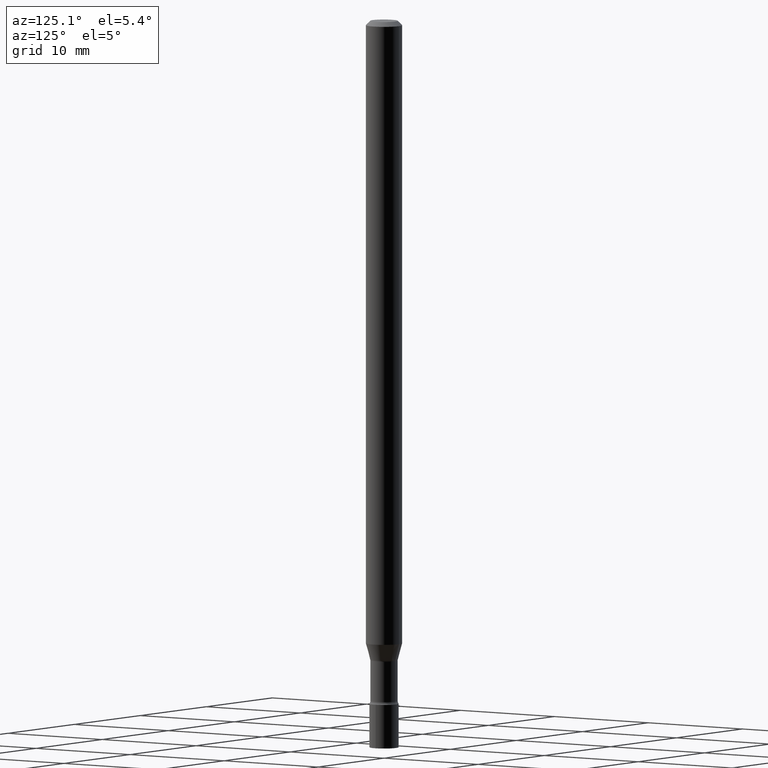
[diagram: clean part render]
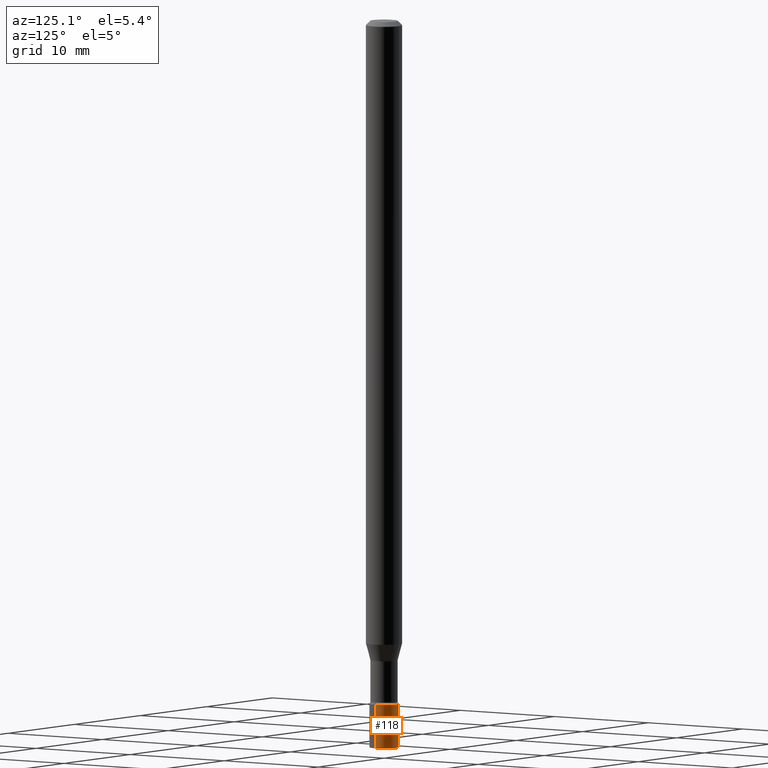
[diagram: same view with one face highlighted and labeled with its STEP entity id]
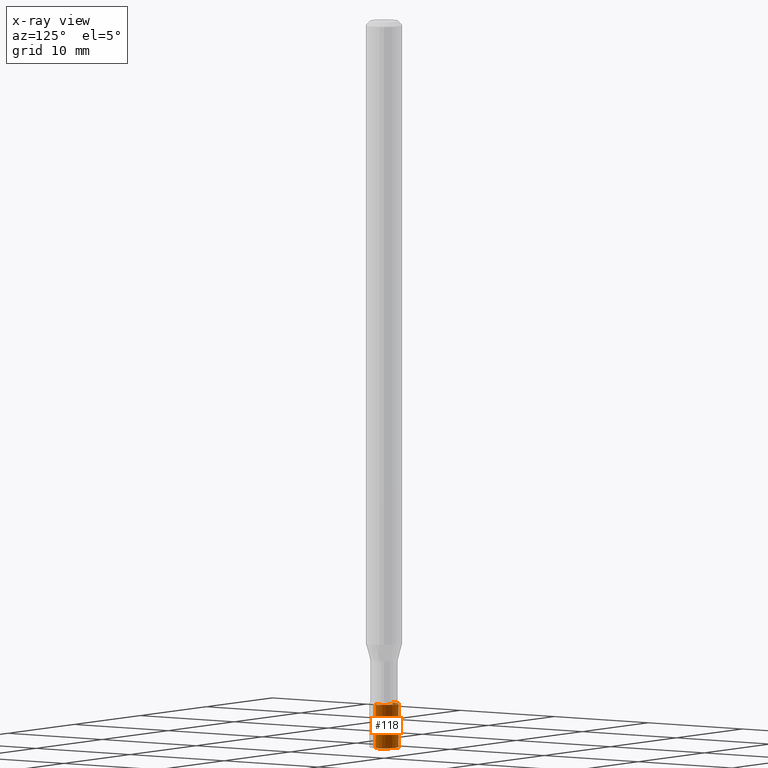
[diagram: x-ray of the same camera — body ghosted, the highlighted face saturated]
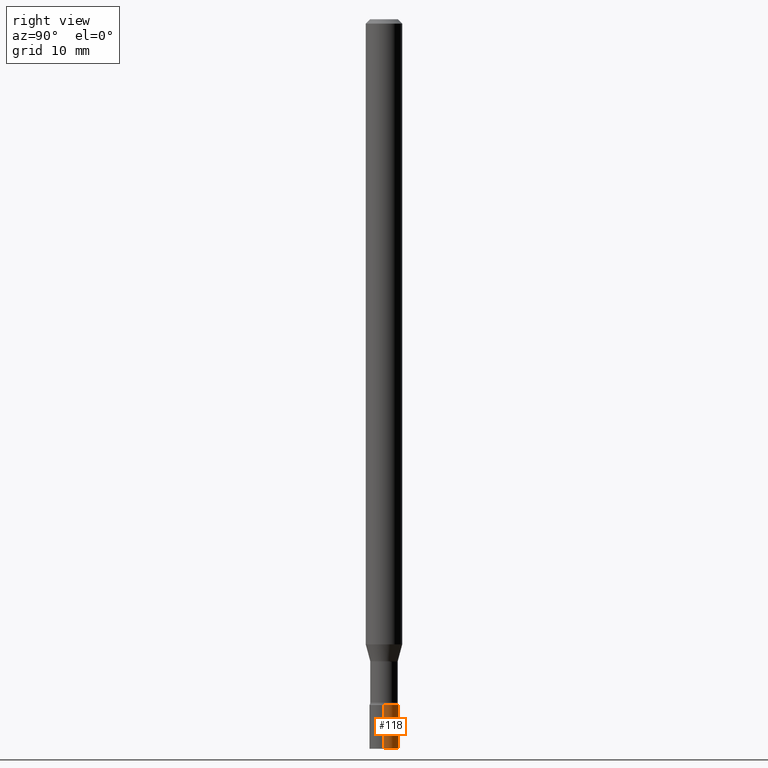
[diagram: same view with one face highlighted and labeled with its STEP entity id]
A machine part, auxiliary view. The second image highlights one B-rep face of the part: STEP entity #118.
The next image is the same camera in x-ray: the body ghosted, the highlighted face saturated — about 0% of this face is hidden behind the body in this view.
A second angle (right view) of the same face is appended — the face is thin or edge-on in the first view.
In plain terms, the highlighted cylindrical surface (edge-blend (fillet) strip) has radius 1.27 mm, axis along (-0, 0, 1).
Its self-contained STEP definition (entity closure, byte-faithful):
#6 = EDGE_CURVE ( 'NONE', #271, #214, #404, .T. ) ;
#15 = CARTESIAN_POINT ( 'NONE',  ( -0.05000000000000000278, -8.111570878814577955E-15, -2.500000000000000000 ) ) ;
#20 = DIRECTION ( 'NONE',  ( 1.000000000000000000, -6.982962677686267499E-15, 4.876176775795936353E-29 ) ) ;
#58 = FACE_OUTER_BOUND ( 'NONE', #91, .T. ) ;
#72 = DIRECTION ( 'NONE',  ( -2.445468806185136597E-29, 3.491481338843145583E-15, 1.000000000000000000 ) ) ;
#75 = LINE ( 'NONE', #152, #109 ) ;
#79 = EDGE_CURVE ( 'NONE', #128, #355, #75, .T. ) ;
#91 = EDGE_LOOP ( 'NONE', ( #108, #153, #324, #144 ) ) ;
#103 = CARTESIAN_POINT ( 'NONE',  ( 0.000000000000000000, 0.000000000000000000, 0.000000000000000000 ) ) ;
#108 = ORIENTED_EDGE ( 'NONE', *, *, #232, .T. ) ;
#109 = VECTOR ( 'NONE', #192, 39.37007874015748143 ) ;
#118 = ADVANCED_FACE ( 'NONE', ( #58 ), #127, .T. ) ;
#127 = CYLINDRICAL_SURFACE ( 'NONE', #252, 0.05000000000000000278 ) ;
#128 = VERTEX_POINT ( 'NONE', #375 ) ;
#144 = ORIENTED_EDGE ( 'NONE', *, *, #79, .F. ) ;
#145 = CARTESIAN_POINT ( 'NONE',  ( 5.746851694535070554E-29, -8.204981146281391784E-15, -2.350000000000000089 ) ) ;
#152 = CARTESIAN_POINT ( 'NONE',  ( 0.05000000000000000278, -3.491481338843133848E-16, 2.438088387897968247E-30 ) ) ;
#153 = ORIENTED_EDGE ( 'NONE', *, *, #6, .T. ) ;
#192 = DIRECTION ( 'NONE',  ( -2.445468806185136877E-29, 3.491481338843145188E-15, 1.000000000000000000 ) ) ;
#207 = CARTESIAN_POINT ( 'NONE',  ( 6.113672015462842613E-29, -8.728703347107864943E-15, -2.500000000000000000 ) ) ;
#211 = AXIS2_PLACEMENT_3D ( 'NONE', #207, #409, #485 ) ;
#214 = VERTEX_POINT ( 'NONE', #438 ) ;
#217 = DIRECTION ( 'NONE',  ( -2.445468806185136597E-29, 3.491481338843145583E-15, 1.000000000000000000 ) ) ;
#219 = VECTOR ( 'NONE', #244, 39.37007874015748143 ) ;
#228 = CIRCLE ( 'NONE', #489, 0.05000000000000000278 ) ;
#232 = EDGE_CURVE ( 'NONE', #128, #271, #439, .T. ) ;
#244 = DIRECTION ( 'NONE',  ( -2.445468806185136877E-29, 3.491481338843145188E-15, 1.000000000000000000 ) ) ;
#250 = CARTESIAN_POINT ( 'NONE',  ( 0.05000000000000000278, -8.554129280165706697E-15, -2.350000000000000089 ) ) ;
#252 = AXIS2_PLACEMENT_3D ( 'NONE', #103, #217, #20 ) ;
#271 = VERTEX_POINT ( 'NONE', #15 ) ;
#324 = ORIENTED_EDGE ( 'NONE', *, *, #472, .F. ) ;
#355 = VERTEX_POINT ( 'NONE', #250 ) ;
#375 = CARTESIAN_POINT ( 'NONE',  ( 0.05000000000000000278, -9.077851480992178278E-15, -2.500000000000000000 ) ) ;
#382 = DIRECTION ( 'NONE',  ( 1.000000000000000000, -6.982962677686274599E-15, 0.000000000000000000 ) ) ;
#404 = LINE ( 'NONE', #481, #219 ) ;
#409 = DIRECTION ( 'NONE',  ( -2.445468806185136597E-29, 3.491481338843145583E-15, 1.000000000000000000 ) ) ;
#438 = CARTESIAN_POINT ( 'NONE',  ( -0.05000000000000000278, -8.111570878814577955E-15, -2.350000000000000089 ) ) ;
#439 = CIRCLE ( 'NONE', #211, 0.05000000000000000278 ) ;
#472 = EDGE_CURVE ( 'NONE', #355, #214, #228, .T. ) ;
#481 = CARTESIAN_POINT ( 'NONE',  ( -0.05000000000000000278, 3.552713678800501127E-16, -2.459467545127453311E-30 ) ) ;
#485 = DIRECTION ( 'NONE',  ( 1.000000000000000000, -6.982962677686274599E-15, 0.000000000000000000 ) ) ;
#489 = AXIS2_PLACEMENT_3D ( 'NONE', #145, #72, #382 ) ;